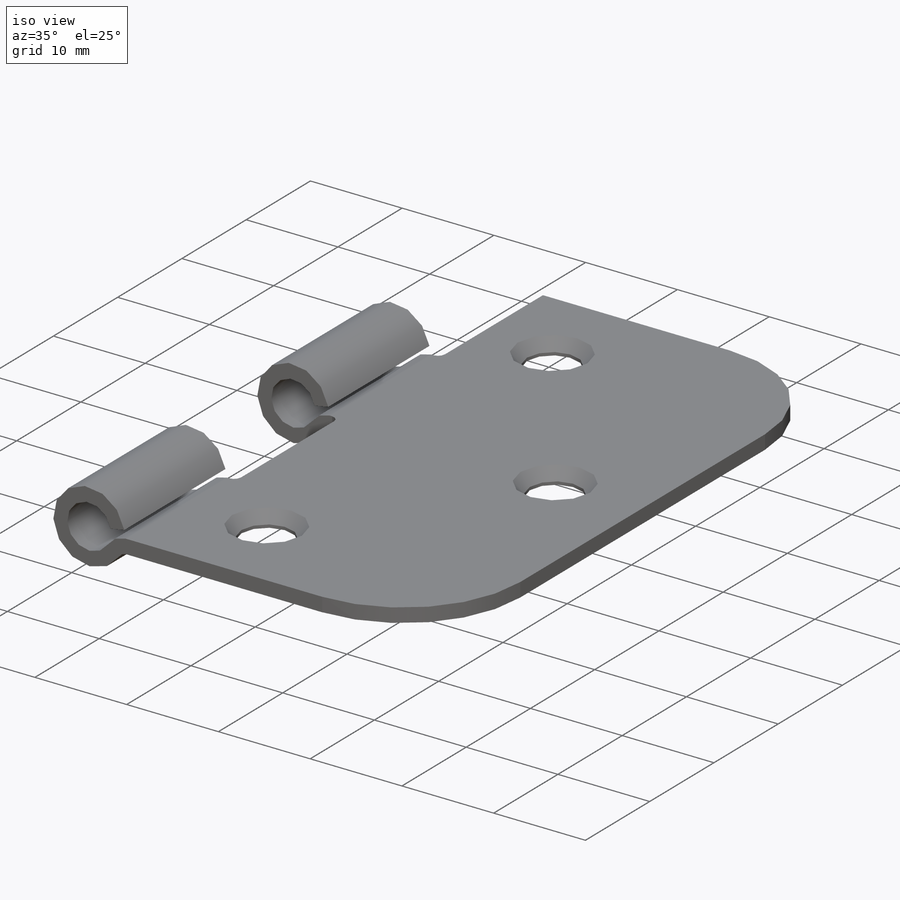
[diagram: iso view]
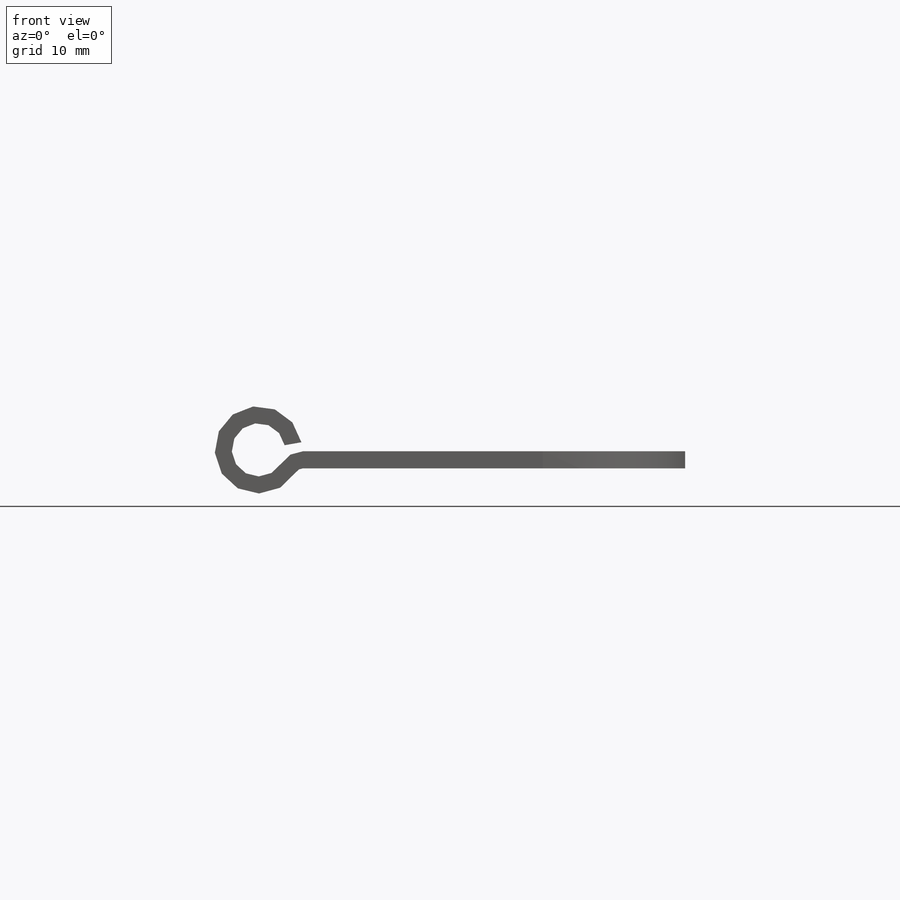
[diagram: front view]
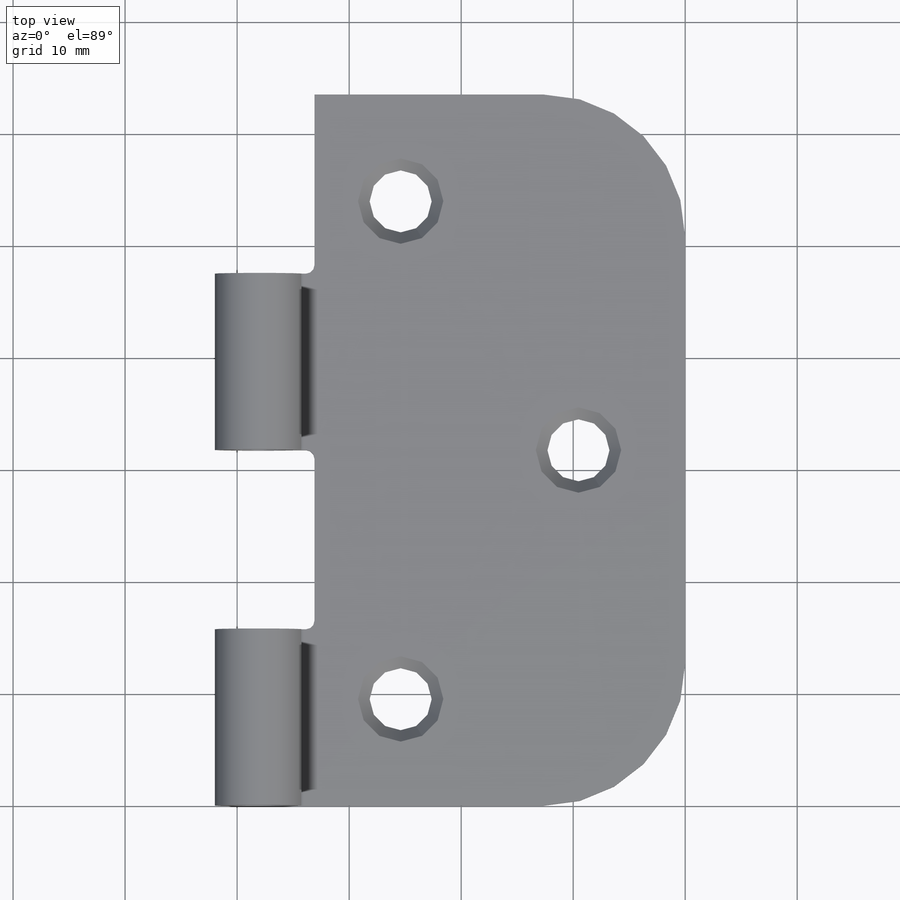
[diagram: top view]
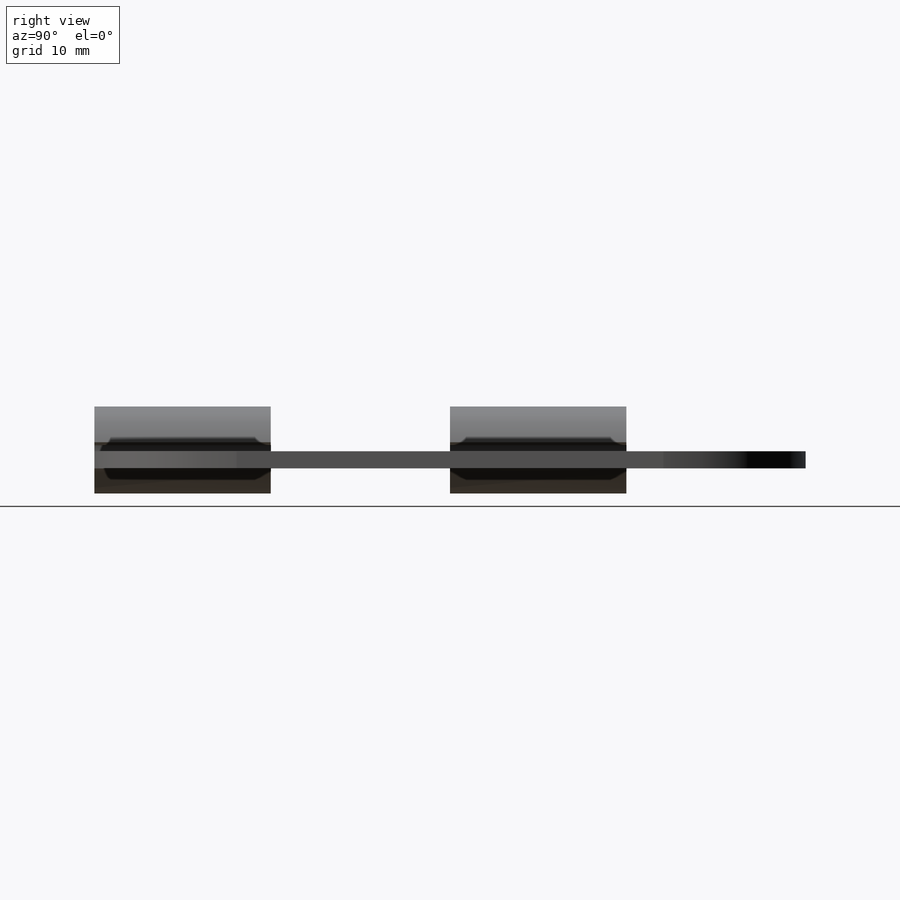
[diagram: right view]
SOLIDWORKS PART (.sldprt)
format: sldprt  version: not decoded by parser v0  size: 312,320 bytes
history: native  units: mm
features: sketch x6, material x1, extrude x1, sheet_metal_op x1, cut_extrude x1, hole x1, fillet x1 (+12 scaffold rows collapsed)
feature tree (24):
  scaffold x12  (default folders/planes/origin — collapsed)
  material  "Brass"
  sketch  "Sketch1"  dims[c1.D2=4.7498mm c1.D4=0.762mm c1.D5=0.508mm c1.D1=0.127mm c1.Thickness=1.524mm c1.D3=2.3749mm c2.D3=17.8135deg c3.D3=2.3749mm c3.D1=0.127mm c4.D3=~174.532925mm c4.D5=63.5mm c4.D6=12.7mm c4.D1=38.1mm c5.D5=1.524mm c5.D6=0.127mm]
  extrude  "BasicHinge"  Depth=63.5mm
  sheet_metal_op  "Sheet-Metal1"
  sketch  "Sketch4"  dims[c1.D3=0.762mm c1.D1=~22.399791mm c1.D2=1.016mm c2.D1=16.002mm c2.D4=16.002mm c2.D2=1.016mm c2.D5=16.002mm c2.D6=15.367mm c2.D7=16.002mm c3.D4=15.748mm]
  cut_extrude  "KnuckleCuts"  [1 undecoded]
  hole  "CSK for #6 Flat Head Machine Screw1"  Diameter=5.5372mm Depth=1.524mm
  sketch  "Sketch6"  dims[D1=9.525mm D2=9.525mm D3=12.7mm]
  sketch  "Sketch5"  dims[hole-wizard template sketch: 40 standard entries collapsed; hole parameters kept: c6.Thru Hole Dia.=5.5372mm c6.Thru Hole Depth=1.524mm c6.Near C'Sink Dia.=7.62mm c6.Near C'Sink Angle=~1431.169987mm]  [1 undecoded]
  sketch  "Sharp-Sketch1"  dims[c1.RoundBend1=0.0 c1.D1=2.3749mm c1.D4=~5564.478858mm c1.D5=2.0 c1.D8=~0.087319deg c1.D9=~0.087319deg c1.RoundBend3=0.0 c2.D1=2.3749mm c2.D4=~5564.478858mm c2.D5=4.0 c2.D8=~0.087319deg c2.D9=~0.087319deg c2.RoundBend4=0.0 c3.D1=0.762mm c3.D4=~1026.622802mm c3.D5=3.0 c3.D8=~0.087319deg c3.D9=~0.087319deg c4.D1=0.0mm]
  sketch  "Flat-Sketch1"  dims[D1=0.0mm]
  fillet  "Fillet1"  Radius=12.7mm
decode coverage: 9 of 11 modeling features carry decoded parameters
note: ~ marks probable driven/reference dimensions
note: 1 parameter value undecoded
note: suppression state not decoded; provenance and decode notes live in map.json
note: 1 required parameter value undecoded (feature->parameter linkage not recoverable at this tier; creation-order binding heuristic only, values carry confidence <= 0.55)
